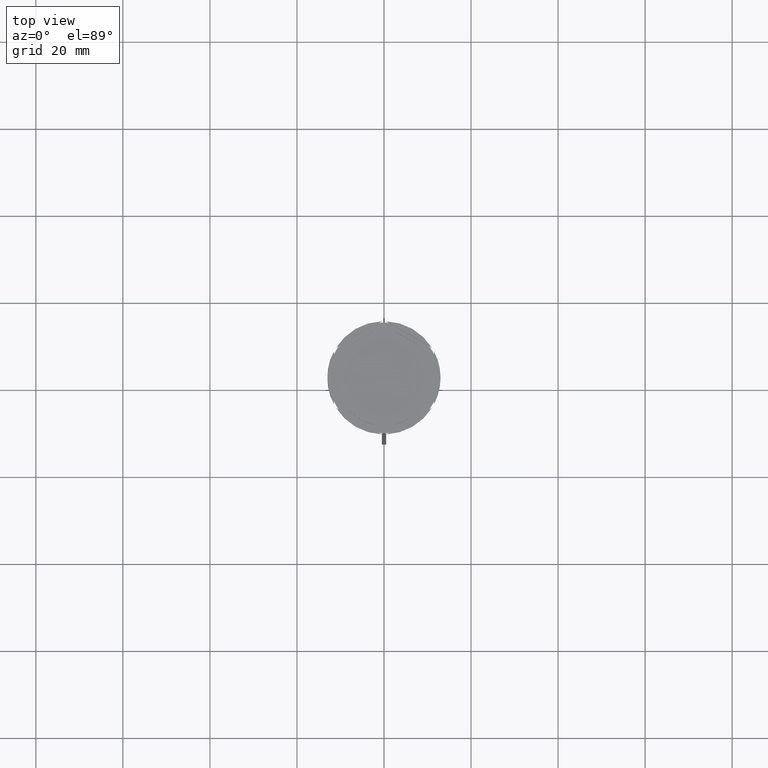
[diagram: clean part render]
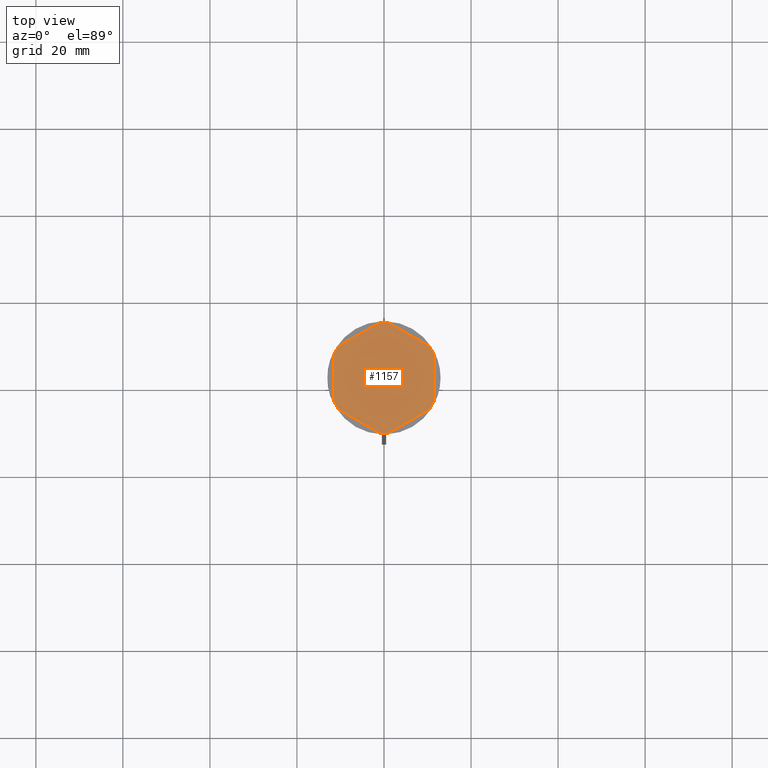
[diagram: same view with one face highlighted and labeled with its STEP entity id]
A machine part, top view. The second image highlights one B-rep face of the part: STEP entity #1157.
In plain terms, the highlighted planar face has unit normal (0, 0, 1).
Its self-contained STEP definition (entity closure, byte-faithful):
#13 = LINE ( 'NONE', #1317, #2567 ) ;
#25 = DIRECTION ( 'NONE',  ( 1.306360520641008153E-16, 1.000000000000000000, 0.000000000000000000 ) ) ;
#28 = EDGE_CURVE ( 'NONE', #1252, #2507, #1468, .T. ) ;
#37 = AXIS2_PLACEMENT_3D ( 'NONE', #1705, #2595, #588 ) ;
#38 = ORIENTED_EDGE ( 'NONE', *, *, #1567, .F. ) ;
#52 = LINE ( 'NONE', #2236, #1582 ) ;
#62 = DIRECTION ( 'NONE',  ( 0.000000000000000000, 0.000000000000000000, 1.000000000000000000 ) ) ;
#66 = DIRECTION ( 'NONE',  ( 0.000000000000000000, 0.000000000000000000, 1.000000000000000000 ) ) ;
#84 = VECTOR ( 'NONE', #1898, 1000.000000000000000 ) ;
#92 = AXIS2_PLACEMENT_3D ( 'NONE', #280, #62, #2312 ) ;
#117 = ORIENTED_EDGE ( 'NONE', *, *, #2176, .F. ) ;
#119 = EDGE_LOOP ( 'NONE', ( #267, #2870, #2232 ) ) ;
#133 = CARTESIAN_POINT ( 'NONE',  ( 10.41690475583121156, 7.264853426459550789, -1.000000000000000000 ) ) ;
#152 = FACE_BOUND ( 'NONE', #2512, .T. ) ;
#170 = EDGE_CURVE ( 'NONE', #2270, #238, #2681, .T. ) ;
#171 = DIRECTION ( 'NONE',  ( 1.000000000000000000, 0.000000000000000000, 0.000000000000000000 ) ) ;
#206 = EDGE_CURVE ( 'NONE', #2507, #1252, #211, .T. ) ;
#211 = LINE ( 'NONE', #1102, #630 ) ;
#238 = VERTEX_POINT ( 'NONE', #491 ) ;
#267 = ORIENTED_EDGE ( 'NONE', *, *, #2623, .F. ) ;
#274 = VECTOR ( 'NONE', #604, 1000.000000000000000 ) ;
#280 = CARTESIAN_POINT ( 'NONE',  ( 0.000000000000000000, 0.000000000000000000, -1.000000000000000000 ) ) ;
#290 = VERTEX_POINT ( 'NONE', #2548 ) ;
#308 = EDGE_LOOP ( 'NONE', ( #904, #1178 ) ) ;
#315 = AXIS2_PLACEMENT_3D ( 'NONE', #1989, #1077, #1785 ) ;
#330 = LINE ( 'NONE', #2126, #2745 ) ;
#339 = EDGE_CURVE ( 'NONE', #2322, #1612, #2866, .T. ) ;
#345 = DIRECTION ( 'NONE',  ( 0.000000000000000000, 0.000000000000000000, 1.000000000000000000 ) ) ;
#359 = CARTESIAN_POINT ( 'NONE',  ( 8.089454172900138573, 7.453907108661105063, -1.000000000000000888 ) ) ;
#362 = CARTESIAN_POINT ( 'NONE',  ( -10.49999999999999822, -3.278719262151000624, -1.000000000000000888 ) ) ;
#388 = CARTESIAN_POINT ( 'NONE',  ( 0.000000000000000000, 0.000000000000000000, -1.000000000000000000 ) ) ;
#391 = CARTESIAN_POINT ( 'NONE',  ( 0.000000000000000000, 0.000000000000000000, -1.000000000000000000 ) ) ;
#394 = ORIENTED_EDGE ( 'NONE', *, *, #1243, .F. ) ;
#395 = ORIENTED_EDGE ( 'NONE', *, *, #2469, .F. ) ;
#410 = CIRCLE ( 'NONE', #2295, 11.00000000000000000 ) ;
#415 = AXIS2_PLACEMENT_3D ( 'NONE', #1757, #2021, #2655 ) ;
#429 = EDGE_CURVE ( 'NONE', #2270, #1829, #1905, .T. ) ;
#455 = CIRCLE ( 'NONE', #92, 11.00000000000000000 ) ;
#459 = ORIENTED_EDGE ( 'NONE', *, *, #206, .F. ) ;
#468 = EDGE_CURVE ( 'NONE', #1803, #1273, #867, .T. ) ;
#486 = ORIENTED_EDGE ( 'NONE', *, *, #468, .F. ) ;
#491 = CARTESIAN_POINT ( 'NONE',  ( 11.49999999999999822, 5.388877434122992582, -1.000000000000000000 ) ) ;
#515 = EDGE_LOOP ( 'NONE', ( #520, #2498 ) ) ;
#520 = ORIENTED_EDGE ( 'NONE', *, *, #1255, .F. ) ;
#531 = DIRECTION ( 'NONE',  ( 1.000000000000000000, 0.000000000000000000, 0.000000000000000000 ) ) ;
#545 = FACE_BOUND ( 'NONE', #515, .T. ) ;
#555 = CARTESIAN_POINT ( 'NONE',  ( 10.41690475583121867, -7.264853426459537467, -1.000000000000000000 ) ) ;
#559 = VECTOR ( 'NONE', #2811, 1000.000000000000000 ) ;
#588 = DIRECTION ( 'NONE',  ( 1.000000000000000000, 0.000000000000000000, 0.000000000000000000 ) ) ;
#599 = CARTESIAN_POINT ( 'NONE',  ( -10.41690475583121334, -7.264853426459548125, -1.000000000000000000 ) ) ;
#604 = DIRECTION ( 'NONE',  ( -0.8660254037844384856, 0.5000000000000002220, 0.000000000000000000 ) ) ;
#630 = VECTOR ( 'NONE', #2009, 1000.000000000000000 ) ;
#671 = CARTESIAN_POINT ( 'NONE',  ( -10.41690475583121689, 7.264853426459546348, -1.000000000000000000 ) ) ;
#678 = CARTESIAN_POINT ( 'NONE',  ( -11.50000000000000000, -5.388877434122992582, -1.000000000000000000 ) ) ;
#683 = CIRCLE ( 'NONE', #2787, 11.00000000000000000 ) ;
#694 = DIRECTION ( 'NONE',  ( 0.000000000000000000, -1.000000000000000000, 0.000000000000000000 ) ) ;
#709 = CARTESIAN_POINT ( 'NONE',  ( 11.49999999999999822, -5.388877434122996135, -1.000000000000000000 ) ) ;
#726 = ORIENTED_EDGE ( 'NONE', *, *, #2118, .T. ) ;
#752 = CARTESIAN_POINT ( 'NONE',  ( -2.602085213965210642E-15, -12.12435565298214080, -1.000000000000000888 ) ) ;
#764 = FACE_BOUND ( 'NONE', #2058, .T. ) ;
#803 = ORIENTED_EDGE ( 'NONE', *, *, #429, .F. ) ;
#806 = CARTESIAN_POINT ( 'NONE',  ( 8.089454172900135021, -7.453907108661109504, -1.000000000000000888 ) ) ;
#824 = AXIS2_PLACEMENT_3D ( 'NONE', #2155, #2570, #1436 ) ;
#867 = CIRCLE ( 'NONE', #315, 11.00000000000000000 ) ;
#875 = VERTEX_POINT ( 'NONE', #671 ) ;
#880 = CIRCLE ( 'NONE', #1639, 12.69999999999999929 ) ;
#901 = ORIENTED_EDGE ( 'NONE', *, *, #28, .F. ) ;
#904 = ORIENTED_EDGE ( 'NONE', *, *, #1084, .F. ) ;
#906 = CARTESIAN_POINT ( 'NONE',  ( 2.410545827099861871, 10.73262637081210791, -1.000000000000000888 ) ) ;
#942 = DIRECTION ( 'NONE',  ( -0.000000000000000000, -0.000000000000000000, -1.000000000000000000 ) ) ;
#972 = VERTEX_POINT ( 'NONE', #1751 ) ;
#983 = LINE ( 'NONE', #2778, #84 ) ;
#997 = PLANE ( 'NONE',  #824 ) ;
#1004 = DIRECTION ( 'NONE',  ( 0.000000000000000000, 0.000000000000000000, 1.000000000000000000 ) ) ;
#1011 = FACE_OUTER_BOUND ( 'NONE', #2868, .T. ) ;
#1038 = ORIENTED_EDGE ( 'NONE', *, *, #2609, .T. ) ;
#1046 = ORIENTED_EDGE ( 'NONE', *, *, #1712, .T. ) ;
#1052 = LINE ( 'NONE', #2836, #274 ) ;
#1060 = CIRCLE ( 'NONE', #1435, 12.69999999999999929 ) ;
#1074 = ORIENTED_EDGE ( 'NONE', *, *, #1277, .F. ) ;
#1077 = DIRECTION ( 'NONE',  ( 0.000000000000000000, 0.000000000000000000, 1.000000000000000000 ) ) ;
#1084 = EDGE_CURVE ( 'NONE', #1610, #2495, #683, .T. ) ;
#1102 = CARTESIAN_POINT ( 'NONE',  ( 10.49999999999999289, -6.062177826491073063, -1.000000000000000888 ) ) ;
#1123 = EDGE_CURVE ( 'NONE', #2495, #1610, #2694, .T. ) ;
#1134 = EDGE_CURVE ( 'NONE', #1577, #972, #983, .T. ) ;
#1156 = DIRECTION ( 'NONE',  ( 1.000000000000000000, 1.243449787580175325E-14, 0.000000000000000000 ) ) ;
#1157 = ADVANCED_FACE ( 'NONE', ( #545, #152, #1676, #764, #1886, #1692, #1011 ), #997, .T. ) ;
#1172 = CARTESIAN_POINT ( 'NONE',  ( 0.000000000000000000, 0.000000000000000000, -1.000000000000000000 ) ) ;
#1177 = EDGE_CURVE ( 'NONE', #1646, #1763, #1060, .T. ) ;
#1178 = ORIENTED_EDGE ( 'NONE', *, *, #1123, .F. ) ;
#1212 = EDGE_CURVE ( 'NONE', #2183, #2031, #330, .T. ) ;
#1217 = VERTEX_POINT ( 'NONE', #2794 ) ;
#1235 = ORIENTED_EDGE ( 'NONE', *, *, #2685, .F. ) ;
#1243 = EDGE_CURVE ( 'NONE', #2390, #2093, #1291, .T. ) ;
#1252 = VERTEX_POINT ( 'NONE', #1259 ) ;
#1254 = CARTESIAN_POINT ( 'NONE',  ( -2.410545827099876082, -10.73262637081210435, -1.000000000000000888 ) ) ;
#1255 = EDGE_CURVE ( 'NONE', #2031, #2183, #410, .T. ) ;
#1259 = CARTESIAN_POINT ( 'NONE',  ( 10.49999999999999467, -3.278719262151014835, -1.000000000000000888 ) ) ;
#1272 = CARTESIAN_POINT ( 'NONE',  ( -8.089454172900135021, 7.453907108661106840, -1.000000000000000888 ) ) ;
#1273 = VERTEX_POINT ( 'NONE', #1272 ) ;
#1277 = EDGE_CURVE ( 'NONE', #1670, #1217, #1052, .T. ) ;
#1278 = DIRECTION ( 'NONE',  ( -0.000000000000000000, -0.000000000000000000, -1.000000000000000000 ) ) ;
#1291 = CIRCLE ( 'NONE', #37, 12.69999999999999929 ) ;
#1311 = CARTESIAN_POINT ( 'NONE',  ( -1.083095244168783333, 12.65373086058254160, -1.000000000000000000 ) ) ;
#1317 = CARTESIAN_POINT ( 'NONE',  ( 5.612359739892467248E-18, -13.27905619136138959, -1.000000000000000000 ) ) ;
#1335 = EDGE_LOOP ( 'NONE', ( #486, #395 ) ) ;
#1340 = DIRECTION ( 'NONE',  ( -0.000000000000000000, -0.000000000000000000, -1.000000000000000000 ) ) ;
#1344 = DIRECTION ( 'NONE',  ( -0.8660254037844387076, -0.4999999999999999445, 0.000000000000000000 ) ) ;
#1375 = DIRECTION ( 'NONE',  ( 0.000000000000000000, 1.000000000000000000, 0.000000000000000000 ) ) ;
#1382 = ORIENTED_EDGE ( 'NONE', *, *, #1134, .T. ) ;
#1387 = DIRECTION ( 'NONE',  ( 0.000000000000000000, 0.000000000000000000, 1.000000000000000000 ) ) ;
#1391 = VERTEX_POINT ( 'NONE', #1311 ) ;
#1394 = CARTESIAN_POINT ( 'NONE',  ( -10.49999999999999822, 6.062177826491068622, -1.000000000000000888 ) ) ;
#1435 = AXIS2_PLACEMENT_3D ( 'NONE', #1460, #2139, #1913 ) ;
#1436 = DIRECTION ( 'NONE',  ( 1.000000000000000000, 0.000000000000000000, -0.000000000000000000 ) ) ;
#1445 = CARTESIAN_POINT ( 'NONE',  ( 0.000000000000000000, 0.000000000000000000, -1.000000000000000000 ) ) ;
#1450 = DIRECTION ( 'NONE',  ( 0.8660254037844387076, -0.4999999999999999445, 0.000000000000000000 ) ) ;
#1460 = CARTESIAN_POINT ( 'NONE',  ( 0.000000000000000000, 0.000000000000000000, -1.000000000000000000 ) ) ;
#1468 = CIRCLE ( 'NONE', #1811, 11.00000000000000000 ) ;
#1529 = AXIS2_PLACEMENT_3D ( 'NONE', #1172, #942, #1850 ) ;
#1560 = CARTESIAN_POINT ( 'NONE',  ( 0.000000000000000000, 0.000000000000000000, -1.000000000000000000 ) ) ;
#1567 = EDGE_CURVE ( 'NONE', #1577, #238, #1576, .T. ) ;
#1575 = DIRECTION ( 'NONE',  ( 0.8660254037844385966, 0.4999999999999999445, 0.000000000000000000 ) ) ;
#1576 = CIRCLE ( 'NONE', #1529, 12.69999999999999929 ) ;
#1577 = VERTEX_POINT ( 'NONE', #133 ) ;
#1578 = VECTOR ( 'NONE', #694, 1000.000000000000000 ) ;
#1582 = VECTOR ( 'NONE', #1838, 1000.000000000000227 ) ;
#1610 = VERTEX_POINT ( 'NONE', #2805 ) ;
#1612 = VERTEX_POINT ( 'NONE', #362 ) ;
#1617 = AXIS2_PLACEMENT_3D ( 'NONE', #1445, #345, #2784 ) ;
#1639 = AXIS2_PLACEMENT_3D ( 'NONE', #1560, #1340, #1156 ) ;
#1646 = VERTEX_POINT ( 'NONE', #599 ) ;
#1664 = ORIENTED_EDGE ( 'NONE', *, *, #170, .T. ) ;
#1670 = VERTEX_POINT ( 'NONE', #1254 ) ;
#1676 = FACE_BOUND ( 'NONE', #308, .T. ) ;
#1683 = CIRCLE ( 'NONE', #415, 12.69999999999999929 ) ;
#1692 = FACE_BOUND ( 'NONE', #1335, .T. ) ;
#1705 = CARTESIAN_POINT ( 'NONE',  ( 0.000000000000000000, 0.000000000000000000, -1.000000000000000000 ) ) ;
#1712 = EDGE_CURVE ( 'NONE', #2390, #1829, #13, .T. ) ;
#1719 = CARTESIAN_POINT ( 'NONE',  ( 0.000000000000000000, 0.000000000000000000, -1.000000000000000000 ) ) ;
#1751 = CARTESIAN_POINT ( 'NONE',  ( 1.083095244168781557, 12.65373086058254160, -1.000000000000000000 ) ) ;
#1757 = CARTESIAN_POINT ( 'NONE',  ( 0.000000000000000000, 0.000000000000000000, -1.000000000000000000 ) ) ;
#1763 = VERTEX_POINT ( 'NONE', #678 ) ;
#1785 = DIRECTION ( 'NONE',  ( 1.000000000000000000, 0.000000000000000000, 0.000000000000000000 ) ) ;
#1794 = CARTESIAN_POINT ( 'NONE',  ( 0.000000000000000000, 13.27905619136138959, -1.000000000000000000 ) ) ;
#1803 = VERTEX_POINT ( 'NONE', #2055 ) ;
#1805 = CARTESIAN_POINT ( 'NONE',  ( 0.000000000000000000, 0.000000000000000000, -1.000000000000000000 ) ) ;
#1811 = AXIS2_PLACEMENT_3D ( 'NONE', #391, #1004, #1906 ) ;
#1828 = EDGE_CURVE ( 'NONE', #1217, #1670, #455, .T. ) ;
#1829 = VERTEX_POINT ( 'NONE', #555 ) ;
#1838 = DIRECTION ( 'NONE',  ( 0.8660254037844387076, -0.4999999999999997780, 0.000000000000000000 ) ) ;
#1841 = DIRECTION ( 'NONE',  ( 1.000000000000000000, 0.000000000000000000, 0.000000000000000000 ) ) ;
#1850 = DIRECTION ( 'NONE',  ( 1.000000000000000000, -1.776356839400250465E-14, 0.000000000000000000 ) ) ;
#1857 = LINE ( 'NONE', #1394, #2481 ) ;
#1886 = FACE_BOUND ( 'NONE', #119, .T. ) ;
#1893 = ORIENTED_EDGE ( 'NONE', *, *, #1177, .F. ) ;
#1898 = DIRECTION ( 'NONE',  ( -0.8660254037844388186, 0.4999999999999997224, 0.000000000000000000 ) ) ;
#1905 = CIRCLE ( 'NONE', #2690, 12.69999999999999929 ) ;
#1906 = DIRECTION ( 'NONE',  ( 1.000000000000000000, 0.000000000000000000, 0.000000000000000000 ) ) ;
#1913 = DIRECTION ( 'NONE',  ( 1.000000000000000000, 7.105427357601001859E-15, 0.000000000000000000 ) ) ;
#1960 = CARTESIAN_POINT ( 'NONE',  ( 10.49999999999999467, 3.278719262151012170, -1.000000000000000888 ) ) ;
#1989 = CARTESIAN_POINT ( 'NONE',  ( 0.000000000000000000, 0.000000000000000000, -1.000000000000000000 ) ) ;
#2009 = DIRECTION ( 'NONE',  ( -1.430775808321104180E-16, -1.000000000000000000, 0.000000000000000000 ) ) ;
#2016 = DIRECTION ( 'NONE',  ( -0.8660254037844385966, -0.5000000000000001110, 0.000000000000000000 ) ) ;
#2021 = DIRECTION ( 'NONE',  ( -0.000000000000000000, -0.000000000000000000, -1.000000000000000000 ) ) ;
#2031 = VERTEX_POINT ( 'NONE', #359 ) ;
#2037 = CARTESIAN_POINT ( 'NONE',  ( 11.49999999999999822, -6.639528095680694797, -1.000000000000000000 ) ) ;
#2046 = CARTESIAN_POINT ( 'NONE',  ( 0.000000000000000000, 0.000000000000000000, -1.000000000000000000 ) ) ;
#2055 = CARTESIAN_POINT ( 'NONE',  ( -2.410545827099867200, 10.73262637081210613, -1.000000000000000888 ) ) ;
#2058 = EDGE_LOOP ( 'NONE', ( #2137, #1074 ) ) ;
#2061 = DIRECTION ( 'NONE',  ( 1.000000000000000000, 0.000000000000000000, 0.000000000000000000 ) ) ;
#2093 = VERTEX_POINT ( 'NONE', #2409 ) ;
#2118 = EDGE_CURVE ( 'NONE', #290, #1763, #2434, .T. ) ;
#2126 = CARTESIAN_POINT ( 'NONE',  ( 10.49999999999999467, 6.062177826491072175, -1.000000000000000888 ) ) ;
#2129 = LINE ( 'NONE', #2160, #559 ) ;
#2137 = ORIENTED_EDGE ( 'NONE', *, *, #1828, .F. ) ;
#2139 = DIRECTION ( 'NONE',  ( -0.000000000000000000, -0.000000000000000000, -1.000000000000000000 ) ) ;
#2155 = CARTESIAN_POINT ( 'NONE',  ( 0.000000000000000000, 0.000000000000000000, -1.000000000000000000 ) ) ;
#2160 = CARTESIAN_POINT ( 'NONE',  ( -1.734723475976807094E-15, 12.12435565298214080, -1.000000000000000888 ) ) ;
#2162 = VECTOR ( 'NONE', #2016, 1000.000000000000114 ) ;
#2172 = DIRECTION ( 'NONE',  ( 0.000000000000000000, 0.000000000000000000, 1.000000000000000000 ) ) ;
#2176 = EDGE_CURVE ( 'NONE', #290, #875, #1683, .T. ) ;
#2183 = VERTEX_POINT ( 'NONE', #906 ) ;
#2194 = VECTOR ( 'NONE', #25, 1000.000000000000000 ) ;
#2232 = ORIENTED_EDGE ( 'NONE', *, *, #339, .F. ) ;
#2236 = CARTESIAN_POINT ( 'NONE',  ( -11.50000000000000000, -6.639528095680696573, -1.000000000000000000 ) ) ;
#2270 = VERTEX_POINT ( 'NONE', #709 ) ;
#2284 = VERTEX_POINT ( 'NONE', #2772 ) ;
#2295 = AXIS2_PLACEMENT_3D ( 'NONE', #1719, #2172, #531 ) ;
#2307 = AXIS2_PLACEMENT_3D ( 'NONE', #1805, #1387, #2061 ) ;
#2310 = CARTESIAN_POINT ( 'NONE',  ( 1.083095244168774673, -12.65373086058253982, -1.000000000000000000 ) ) ;
#2312 = DIRECTION ( 'NONE',  ( 1.000000000000000000, 0.000000000000000000, 0.000000000000000000 ) ) ;
#2322 = VERTEX_POINT ( 'NONE', #2517 ) ;
#2342 = EDGE_CURVE ( 'NONE', #1612, #2284, #1857, .T. ) ;
#2390 = VERTEX_POINT ( 'NONE', #2310 ) ;
#2409 = CARTESIAN_POINT ( 'NONE',  ( -1.083095244168779780, -12.65373086058253982, -1.000000000000000000 ) ) ;
#2434 = LINE ( 'NONE', #2700, #1578 ) ;
#2469 = EDGE_CURVE ( 'NONE', #1273, #1803, #2129, .T. ) ;
#2481 = VECTOR ( 'NONE', #1375, 1000.000000000000000 ) ;
#2482 = ORIENTED_EDGE ( 'NONE', *, *, #2591, .T. ) ;
#2484 = LINE ( 'NONE', #1794, #2162 ) ;
#2495 = VERTEX_POINT ( 'NONE', #806 ) ;
#2498 = ORIENTED_EDGE ( 'NONE', *, *, #1212, .F. ) ;
#2507 = VERTEX_POINT ( 'NONE', #1960 ) ;
#2512 = EDGE_LOOP ( 'NONE', ( #901, #459 ) ) ;
#2517 = CARTESIAN_POINT ( 'NONE',  ( -11.00000000000000000, 0.000000000000000000, -1.000000000000000000 ) ) ;
#2548 = CARTESIAN_POINT ( 'NONE',  ( -11.50000000000000000, 5.388877434122992582, -1.000000000000000000 ) ) ;
#2567 = VECTOR ( 'NONE', #1575, 1000.000000000000114 ) ;
#2570 = DIRECTION ( 'NONE',  ( 0.000000000000000000, 0.000000000000000000, 1.000000000000000000 ) ) ;
#2591 = EDGE_CURVE ( 'NONE', #1646, #2093, #52, .T. ) ;
#2595 = DIRECTION ( 'NONE',  ( -0.000000000000000000, -0.000000000000000000, -1.000000000000000000 ) ) ;
#2609 = EDGE_CURVE ( 'NONE', #1391, #875, #2484, .T. ) ;
#2623 = EDGE_CURVE ( 'NONE', #2284, #2322, #2659, .T. ) ;
#2655 = DIRECTION ( 'NONE',  ( 1.000000000000000000, 0.000000000000000000, 0.000000000000000000 ) ) ;
#2659 = CIRCLE ( 'NONE', #2307, 11.00000000000000000 ) ;
#2681 = LINE ( 'NONE', #2037, #2194 ) ;
#2685 = EDGE_CURVE ( 'NONE', #1391, #972, #880, .T. ) ;
#2690 = AXIS2_PLACEMENT_3D ( 'NONE', #388, #1278, #171 ) ;
#2694 = LINE ( 'NONE', #752, #2875 ) ;
#2700 = CARTESIAN_POINT ( 'NONE',  ( -11.50000000000000000, 6.639528095680691244, -1.000000000000000000 ) ) ;
#2745 = VECTOR ( 'NONE', #1450, 999.9999999999998863 ) ;
#2772 = CARTESIAN_POINT ( 'NONE',  ( -10.49999999999999822, 3.278719262151000624, -1.000000000000000888 ) ) ;
#2778 = CARTESIAN_POINT ( 'NONE',  ( 11.50000000000000000, 6.639528095680698350, -1.000000000000000000 ) ) ;
#2784 = DIRECTION ( 'NONE',  ( 1.000000000000000000, 0.000000000000000000, 0.000000000000000000 ) ) ;
#2787 = AXIS2_PLACEMENT_3D ( 'NONE', #2046, #66, #1841 ) ;
#2794 = CARTESIAN_POINT ( 'NONE',  ( -8.089454172900133244, -7.453907108661111280, -1.000000000000000888 ) ) ;
#2805 = CARTESIAN_POINT ( 'NONE',  ( 2.410545827099865868, -10.73262637081210791, -1.000000000000000888 ) ) ;
#2811 = DIRECTION ( 'NONE',  ( 0.8660254037844385966, 0.5000000000000001110, -0.000000000000000000 ) ) ;
#2836 = CARTESIAN_POINT ( 'NONE',  ( -10.49999999999999822, -6.062177826491068622, -1.000000000000000888 ) ) ;
#2866 = CIRCLE ( 'NONE', #1617, 11.00000000000000000 ) ;
#2868 = EDGE_LOOP ( 'NONE', ( #1664, #38, #1382, #1235, #1038, #117, #726, #1893, #2482, #394, #1046, #803 ) ) ;
#2870 = ORIENTED_EDGE ( 'NONE', *, *, #2342, .F. ) ;
#2875 = VECTOR ( 'NONE', #1344, 999.9999999999998863 ) ;